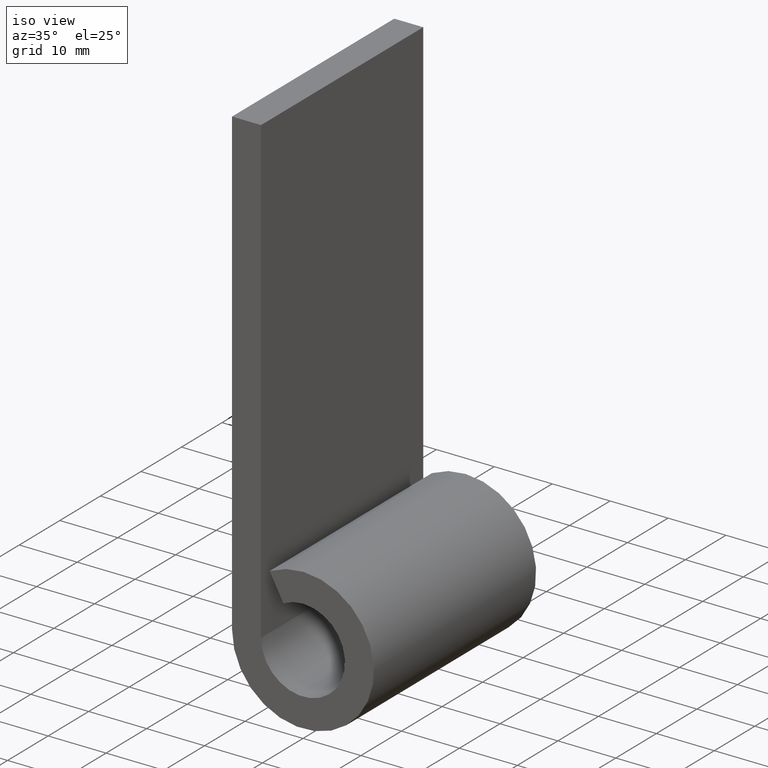
[diagram: clean part render]
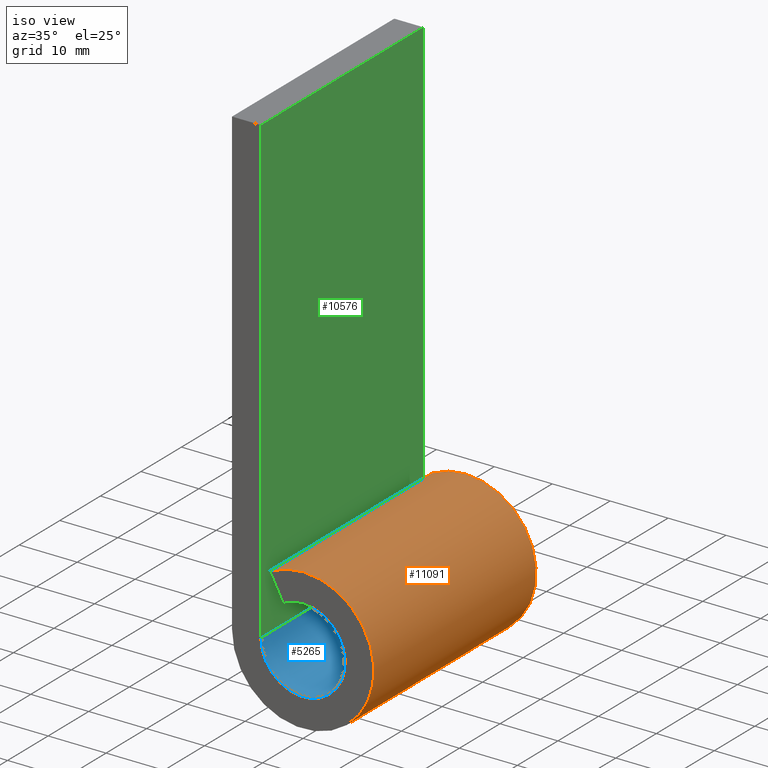
[diagram: same view with three faces highlighted in distinct colors, each labeled with its STEP entity id]
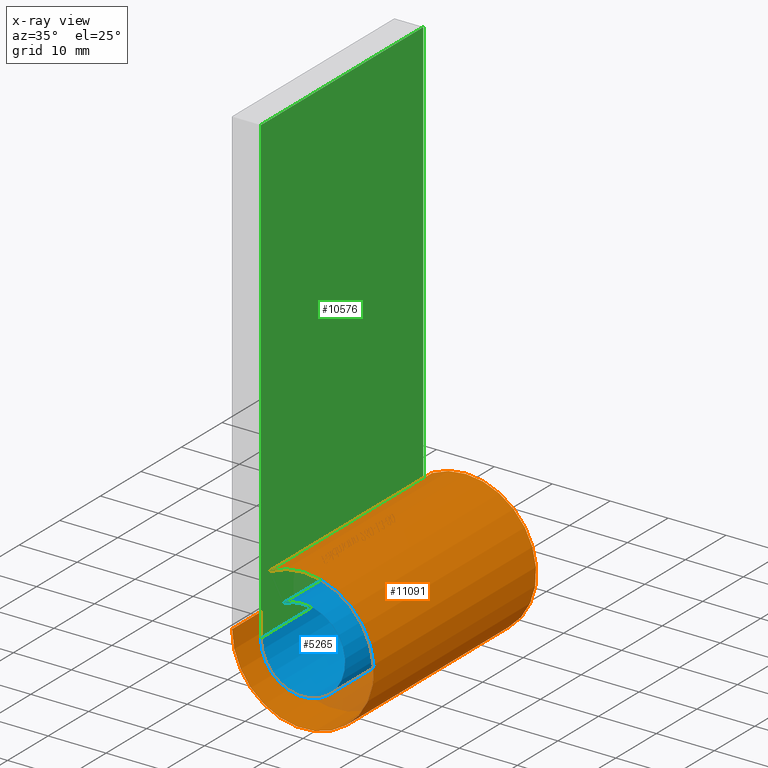
[diagram: x-ray of the same camera — body ghosted, the three highlighted faces saturated]
A machine part, iso view with three faces highlighted in distinct colors.
The next image is the same camera in x-ray (body ghosted, the three faces saturated) — at least one of them is partly hidden behind the body in this view.
Their STEP definitions:

[orange] entity #11091 — the highlighted cylindrical surface (partial cylindrical patch) has radius 12.25 mm, axis along (-0, -1, -0).
#104 = CARTESIAN_POINT ( 'NONE',  ( 8.673617379884035472E-15, -20.00000000000000000, 0.000000000000000000 ) ) ;
#1152 = CIRCLE ( 'NONE', #12302, 12.25000000000000711 ) ;
#1282 = CARTESIAN_POINT ( 'NONE',  ( -5.750000000000000888, 20.00000000000000000, 10.81665382639196871 ) ) ;
#1738 = AXIS2_PLACEMENT_3D ( 'NONE', #9248, #12268, #11148 ) ;
#1877 = CARTESIAN_POINT ( 'NONE',  ( -12.24999999999999822, 20.00000000000000000, 2.250288493433262686E-15 ) ) ;
#1952 = ORIENTED_EDGE ( 'NONE', *, *, #5721, .F. ) ;
#2365 = EDGE_CURVE ( 'NONE', #12747, #5053, #1152, .T. ) ;
#2587 = EDGE_LOOP ( 'NONE', ( #5368, #1952, #10079, #12297 ) ) ;
#2592 = DIRECTION ( 'NONE',  ( 0.000000000000000000, 1.000000000000000000, -0.000000000000000000 ) ) ;
#2814 = CARTESIAN_POINT ( 'NONE',  ( 8.673617379884035472E-15, 20.00000000000000000, 0.000000000000000000 ) ) ;
#3648 = VECTOR ( 'NONE', #9770, 1000.000000000000000 ) ;
#3742 = VERTEX_POINT ( 'NONE', #5145 ) ;
#3809 = LINE ( 'NONE', #1877, #11484 ) ;
#3841 = DIRECTION ( 'NONE',  ( 0.000000000000000000, 1.000000000000000000, -0.000000000000000000 ) ) ;
#4545 = CIRCLE ( 'NONE', #8771, 12.25000000000000711 ) ;
#5053 = VERTEX_POINT ( 'NONE', #7676 ) ;
#5145 = CARTESIAN_POINT ( 'NONE',  ( -5.750000000000000888, 20.00000000000000000, 10.81665382639196871 ) ) ;
#5368 = ORIENTED_EDGE ( 'NONE', *, *, #2365, .T. ) ;
#5578 = CARTESIAN_POINT ( 'NONE',  ( -12.24999999999999822, 20.00000000000000000, 2.250288493433262686E-15 ) ) ;
#5721 = EDGE_CURVE ( 'NONE', #10829, #5053, #3809, .T. ) ;
#5857 = DIRECTION ( 'NONE',  ( 0.000000000000000000, 0.000000000000000000, -1.000000000000000000 ) ) ;
#6383 = LINE ( 'NONE', #1282, #3648 ) ;
#7054 = DIRECTION ( 'NONE',  ( -0.000000000000000000, -1.000000000000000000, -0.000000000000000000 ) ) ;
#7174 = EDGE_CURVE ( 'NONE', #3742, #12747, #6383, .T. ) ;
#7669 = CARTESIAN_POINT ( 'NONE',  ( -5.750000000000000888, -20.00000000000000000, 10.81665382639196871 ) ) ;
#7676 = CARTESIAN_POINT ( 'NONE',  ( -12.24999999999999822, -20.00000000000000000, 2.250288493433262686E-15 ) ) ;
#7905 = FACE_OUTER_BOUND ( 'NONE', #2587, .T. ) ;
#8771 = AXIS2_PLACEMENT_3D ( 'NONE', #2814, #3841, #11012 ) ;
#9248 = CARTESIAN_POINT ( 'NONE',  ( 8.673617379884035472E-15, 20.00000000000000000, 0.000000000000000000 ) ) ;
#9770 = DIRECTION ( 'NONE',  ( -0.000000000000000000, -1.000000000000000000, -0.000000000000000000 ) ) ;
#10079 = ORIENTED_EDGE ( 'NONE', *, *, #12848, .F. ) ;
#10829 = VERTEX_POINT ( 'NONE', #5578 ) ;
#11012 = DIRECTION ( 'NONE',  ( 0.000000000000000000, 0.000000000000000000, -1.000000000000000000 ) ) ;
#11091 = ADVANCED_FACE ( 'NONE', ( #7905 ), #12203, .T. ) ;
#11148 = DIRECTION ( 'NONE',  ( 0.000000000000000000, 0.000000000000000000, -1.000000000000000000 ) ) ;
#11484 = VECTOR ( 'NONE', #7054, 1000.000000000000000 ) ;
#12203 = CYLINDRICAL_SURFACE ( 'NONE', #1738, 12.25000000000000711 ) ;
#12268 = DIRECTION ( 'NONE',  ( -0.000000000000000000, -1.000000000000000000, -0.000000000000000000 ) ) ;
#12297 = ORIENTED_EDGE ( 'NONE', *, *, #7174, .T. ) ;
#12302 = AXIS2_PLACEMENT_3D ( 'NONE', #104, #2592, #5857 ) ;
#12747 = VERTEX_POINT ( 'NONE', #7669 ) ;
#12848 = EDGE_CURVE ( 'NONE', #3742, #10829, #4545, .T. ) ;

[blue] entity #5265 — the highlighted cylindrical surface (partial cylindrical patch) has radius 7.25 mm, axis along (-0, -1, -0).
#38 = DIRECTION ( 'NONE',  ( -0.000000000000000000, -1.000000000000000000, 0.000000000000000000 ) ) ;
#504 = CARTESIAN_POINT ( 'NONE',  ( -7.250000000000000000, 20.00000000000000000, 0.000000000000000000 ) ) ;
#640 = CYLINDRICAL_SURFACE ( 'NONE', #4969, 7.250000000000007105 ) ;
#975 = VERTEX_POINT ( 'NONE', #2202 ) ;
#1195 = CARTESIAN_POINT ( 'NONE',  ( -7.250000000000000000, 20.00000000000000000, 0.000000000000000000 ) ) ;
#1546 = ORIENTED_EDGE ( 'NONE', *, *, #11507, .F. ) ;
#1679 = LINE ( 'NONE', #13213, #4076 ) ;
#2202 = CARTESIAN_POINT ( 'NONE',  ( -3.403061224489794423, -20.00000000000000000, 6.401693080925862311 ) ) ;
#2247 = VERTEX_POINT ( 'NONE', #11106 ) ;
#3628 = ORIENTED_EDGE ( 'NONE', *, *, #11271, .T. ) ;
#3788 = AXIS2_PLACEMENT_3D ( 'NONE', #7275, #38, #11328 ) ;
#3851 = DIRECTION ( 'NONE',  ( -0.000000000000000000, -1.000000000000000000, 0.000000000000000000 ) ) ;
#4076 = VECTOR ( 'NONE', #10442, 1000.000000000000000 ) ;
#4723 = LINE ( 'NONE', #504, #8232 ) ;
#4969 = AXIS2_PLACEMENT_3D ( 'NONE', #11876, #5831, #6893 ) ;
#5022 = CARTESIAN_POINT ( 'NONE',  ( 8.673617379884035472E-15, -20.00000000000000000, 0.000000000000000000 ) ) ;
#5265 = ADVANCED_FACE ( 'NONE', ( #8779 ), #640, .F. ) ;
#5831 = DIRECTION ( 'NONE',  ( -0.000000000000000000, -1.000000000000000000, -0.000000000000000000 ) ) ;
#5864 = VERTEX_POINT ( 'NONE', #6533 ) ;
#6533 = CARTESIAN_POINT ( 'NONE',  ( -7.250000000000000000, -20.00000000000000000, 0.000000000000000000 ) ) ;
#6893 = DIRECTION ( 'NONE',  ( 0.000000000000000000, 0.000000000000000000, -1.000000000000000000 ) ) ;
#7057 = VERTEX_POINT ( 'NONE', #1195 ) ;
#7275 = CARTESIAN_POINT ( 'NONE',  ( 8.673617379884035472E-15, 20.00000000000000000, 0.000000000000000000 ) ) ;
#7941 = DIRECTION ( 'NONE',  ( 0.000000000000000000, 0.000000000000000000, -1.000000000000000000 ) ) ;
#8154 = EDGE_CURVE ( 'NONE', #5864, #975, #9069, .T. ) ;
#8232 = VECTOR ( 'NONE', #10615, 1000.000000000000000 ) ;
#8559 = AXIS2_PLACEMENT_3D ( 'NONE', #5022, #3851, #7941 ) ;
#8779 = FACE_OUTER_BOUND ( 'NONE', #12729, .T. ) ;
#9069 = CIRCLE ( 'NONE', #8559, 7.250000000000007105 ) ;
#9277 = ORIENTED_EDGE ( 'NONE', *, *, #11162, .F. ) ;
#10442 = DIRECTION ( 'NONE',  ( -0.000000000000000000, -1.000000000000000000, -0.000000000000000000 ) ) ;
#10615 = DIRECTION ( 'NONE',  ( -0.000000000000000000, -1.000000000000000000, -0.000000000000000000 ) ) ;
#10769 = CIRCLE ( 'NONE', #3788, 7.250000000000007105 ) ;
#11106 = CARTESIAN_POINT ( 'NONE',  ( -3.403061224489794423, 20.00000000000000000, 6.401693080925862311 ) ) ;
#11162 = EDGE_CURVE ( 'NONE', #2247, #975, #1679, .T. ) ;
#11271 = EDGE_CURVE ( 'NONE', #7057, #5864, #4723, .T. ) ;
#11328 = DIRECTION ( 'NONE',  ( 0.000000000000000000, 0.000000000000000000, -1.000000000000000000 ) ) ;
#11507 = EDGE_CURVE ( 'NONE', #7057, #2247, #10769, .T. ) ;
#11876 = CARTESIAN_POINT ( 'NONE',  ( 8.673617379884035472E-15, 20.00000000000000000, 0.000000000000000000 ) ) ;
#12476 = ORIENTED_EDGE ( 'NONE', *, *, #8154, .T. ) ;
#12729 = EDGE_LOOP ( 'NONE', ( #12476, #9277, #1546, #3628 ) ) ;
#13213 = CARTESIAN_POINT ( 'NONE',  ( -3.403061224489794423, 20.00000000000000000, 6.401693080925862311 ) ) ;

[green] entity #10576 — the highlighted planar face has unit normal (-1, 0, 0).
#378 = AXIS2_PLACEMENT_3D ( 'NONE', #2305, #9349, #3233 ) ;
#504 = CARTESIAN_POINT ( 'NONE',  ( -7.250000000000000000, 20.00000000000000000, 0.000000000000000000 ) ) ;
#727 = EDGE_LOOP ( 'NONE', ( #12972, #9653, #13111, #6283 ) ) ;
#1195 = CARTESIAN_POINT ( 'NONE',  ( -7.250000000000000000, 20.00000000000000000, 0.000000000000000000 ) ) ;
#1204 = VECTOR ( 'NONE', #3713, 1000.000000000000000 ) ;
#1647 = DIRECTION ( 'NONE',  ( 0.000000000000000000, 0.000000000000000000, -1.000000000000000000 ) ) ;
#1989 = PLANE ( 'NONE',  #378 ) ;
#2305 = CARTESIAN_POINT ( 'NONE',  ( -7.250000000000000000, 20.00000000000000000, 80.00000000000000000 ) ) ;
#3233 = DIRECTION ( 'NONE',  ( 0.000000000000000000, 0.000000000000000000, 1.000000000000000000 ) ) ;
#3329 = LINE ( 'NONE', #7665, #12253 ) ;
#3713 = DIRECTION ( 'NONE',  ( 0.000000000000000000, 0.000000000000000000, -1.000000000000000000 ) ) ;
#4723 = LINE ( 'NONE', #504, #8232 ) ;
#4785 = CARTESIAN_POINT ( 'NONE',  ( -7.250000000000000000, -20.00000000000000000, 80.00000000000000000 ) ) ;
#5624 = VERTEX_POINT ( 'NONE', #4785 ) ;
#5864 = VERTEX_POINT ( 'NONE', #6533 ) ;
#6283 = ORIENTED_EDGE ( 'NONE', *, *, #7209, .T. ) ;
#6533 = CARTESIAN_POINT ( 'NONE',  ( -7.250000000000000000, -20.00000000000000000, 0.000000000000000000 ) ) ;
#6675 = EDGE_CURVE ( 'NONE', #5624, #5864, #13225, .T. ) ;
#7057 = VERTEX_POINT ( 'NONE', #1195 ) ;
#7209 = EDGE_CURVE ( 'NONE', #11512, #5624, #3329, .T. ) ;
#7558 = LINE ( 'NONE', #10745, #1204 ) ;
#7665 = CARTESIAN_POINT ( 'NONE',  ( -7.250000000000000000, 20.00000000000000000, 80.00000000000000000 ) ) ;
#8232 = VECTOR ( 'NONE', #10615, 1000.000000000000000 ) ;
#9349 = DIRECTION ( 'NONE',  ( -1.000000000000000000, 0.000000000000000000, 0.000000000000000000 ) ) ;
#9653 = ORIENTED_EDGE ( 'NONE', *, *, #11271, .F. ) ;
#10304 = FACE_OUTER_BOUND ( 'NONE', #727, .T. ) ;
#10576 = ADVANCED_FACE ( 'NONE', ( #10304 ), #1989, .F. ) ;
#10615 = DIRECTION ( 'NONE',  ( -0.000000000000000000, -1.000000000000000000, -0.000000000000000000 ) ) ;
#10618 = DIRECTION ( 'NONE',  ( -0.000000000000000000, -1.000000000000000000, -0.000000000000000000 ) ) ;
#10745 = CARTESIAN_POINT ( 'NONE',  ( -7.250000000000000000, 20.00000000000000000, 80.00000000000000000 ) ) ;
#10873 = CARTESIAN_POINT ( 'NONE',  ( -7.250000000000000000, -20.00000000000000000, 80.00000000000000000 ) ) ;
#11271 = EDGE_CURVE ( 'NONE', #7057, #5864, #4723, .T. ) ;
#11512 = VERTEX_POINT ( 'NONE', #12347 ) ;
#12092 = VECTOR ( 'NONE', #1647, 1000.000000000000000 ) ;
#12253 = VECTOR ( 'NONE', #10618, 1000.000000000000000 ) ;
#12347 = CARTESIAN_POINT ( 'NONE',  ( -7.250000000000000000, 20.00000000000000000, 80.00000000000000000 ) ) ;
#12796 = EDGE_CURVE ( 'NONE', #11512, #7057, #7558, .T. ) ;
#12972 = ORIENTED_EDGE ( 'NONE', *, *, #6675, .T. ) ;
#13111 = ORIENTED_EDGE ( 'NONE', *, *, #12796, .F. ) ;
#13225 = LINE ( 'NONE', #10873, #12092 ) ;